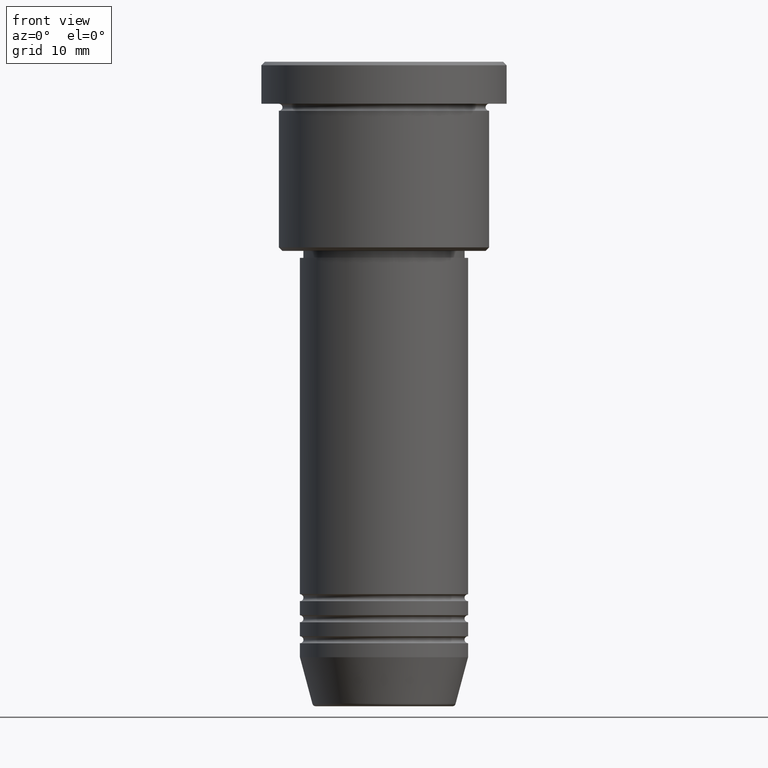
[diagram: clean part render]
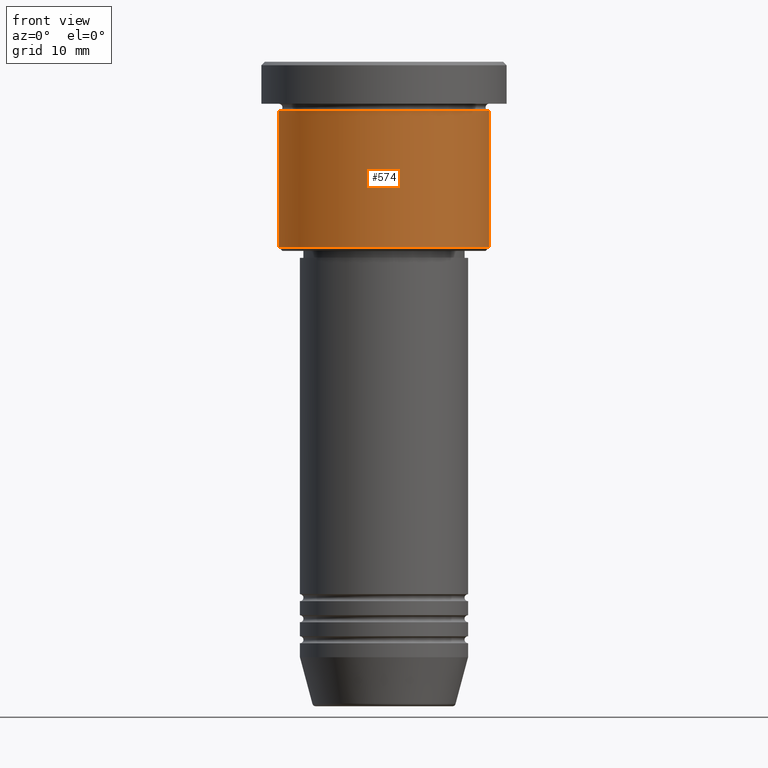
[diagram: same view with one face highlighted and labeled with its STEP entity id]
A machine part, front view. The second image highlights one B-rep face of the part: STEP entity #574.
In plain terms, the highlighted cylindrical surface (partial cylindrical patch) has radius 15 mm, axis along (-0, -0, 1).
Its self-contained STEP definition (entity closure, byte-faithful):
#50 = CIRCLE ( 'NONE', #743, 15.00000000000000000 ) ;
#51 = CARTESIAN_POINT ( 'NONE',  ( 15.00000000000000000, 0.000000000000000000, -6.999999999999995559 ) ) ;
#90 = VECTOR ( 'NONE', #518, 1000.000000000000000 ) ;
#130 = DIRECTION ( 'NONE',  ( -0.000000000000000000, -0.000000000000000000, 1.000000000000000000 ) ) ;
#162 = ORIENTED_EDGE ( 'NONE', *, *, #310, .F. ) ;
#195 = ORIENTED_EDGE ( 'NONE', *, *, #758, .T. ) ;
#212 = VERTEX_POINT ( 'NONE', #1098 ) ;
#222 = CARTESIAN_POINT ( 'NONE',  ( 0.000000000000000000, 0.000000000000000000, -6.999999999999995559 ) ) ;
#301 = VECTOR ( 'NONE', #704, 1000.000000000000000 ) ;
#310 = EDGE_CURVE ( 'NONE', #941, #527, #50, .T. ) ;
#335 = CARTESIAN_POINT ( 'NONE',  ( 15.00000000000000000, 0.000000000000000000, 0.000000000000000000 ) ) ;
#425 = CARTESIAN_POINT ( 'NONE',  ( -15.00000000000000000, 1.836970198721029589E-15, -6.999999999999995559 ) ) ;
#442 = FACE_OUTER_BOUND ( 'NONE', #757, .T. ) ;
#485 = DIRECTION ( 'NONE',  ( -1.000000000000000000, 0.000000000000000000, 0.000000000000000000 ) ) ;
#486 = DIRECTION ( 'NONE',  ( 1.000000000000000000, 0.000000000000000000, 0.000000000000000000 ) ) ;
#502 = AXIS2_PLACEMENT_3D ( 'NONE', #654, #130, #485 ) ;
#518 = DIRECTION ( 'NONE',  ( -0.000000000000000000, -0.000000000000000000, 1.000000000000000000 ) ) ;
#527 = VERTEX_POINT ( 'NONE', #51 ) ;
#536 = EDGE_CURVE ( 'NONE', #885, #527, #597, .T. ) ;
#573 = DIRECTION ( 'NONE',  ( -0.000000000000000000, -0.000000000000000000, 1.000000000000000000 ) ) ;
#574 = ADVANCED_FACE ( 'NONE', ( #442 ), #812, .T. ) ;
#589 = ORIENTED_EDGE ( 'NONE', *, *, #536, .T. ) ;
#597 = LINE ( 'NONE', #335, #301 ) ;
#616 = ORIENTED_EDGE ( 'NONE', *, *, #874, .F. ) ;
#623 = AXIS2_PLACEMENT_3D ( 'NONE', #1007, #896, #804 ) ;
#654 = CARTESIAN_POINT ( 'NONE',  ( 0.000000000000000000, 0.000000000000000000, -26.49999999999998579 ) ) ;
#689 = LINE ( 'NONE', #871, #90 ) ;
#704 = DIRECTION ( 'NONE',  ( -0.000000000000000000, -0.000000000000000000, 1.000000000000000000 ) ) ;
#743 = AXIS2_PLACEMENT_3D ( 'NONE', #222, #573, #486 ) ;
#757 = EDGE_LOOP ( 'NONE', ( #616, #195, #589, #162 ) ) ;
#758 = EDGE_CURVE ( 'NONE', #212, #885, #1025, .T. ) ;
#804 = DIRECTION ( 'NONE',  ( 1.000000000000000000, 0.000000000000000000, 0.000000000000000000 ) ) ;
#812 = CYLINDRICAL_SURFACE ( 'NONE', #623, 15.00000000000000000 ) ;
#871 = CARTESIAN_POINT ( 'NONE',  ( -15.00000000000000000, 1.836970198721029589E-15, 0.000000000000000000 ) ) ;
#874 = EDGE_CURVE ( 'NONE', #212, #941, #689, .T. ) ;
#878 = CARTESIAN_POINT ( 'NONE',  ( 15.00000000000000000, 0.000000000000000000, -26.49999999999998579 ) ) ;
#885 = VERTEX_POINT ( 'NONE', #878 ) ;
#896 = DIRECTION ( 'NONE',  ( -0.000000000000000000, -0.000000000000000000, 1.000000000000000000 ) ) ;
#941 = VERTEX_POINT ( 'NONE', #425 ) ;
#1007 = CARTESIAN_POINT ( 'NONE',  ( 0.000000000000000000, 0.000000000000000000, 0.000000000000000000 ) ) ;
#1025 = CIRCLE ( 'NONE', #502, 15.00000000000000000 ) ;
#1098 = CARTESIAN_POINT ( 'NONE',  ( -15.00000000000000000, 1.836970198721029589E-15, -26.49999999999998579 ) ) ;